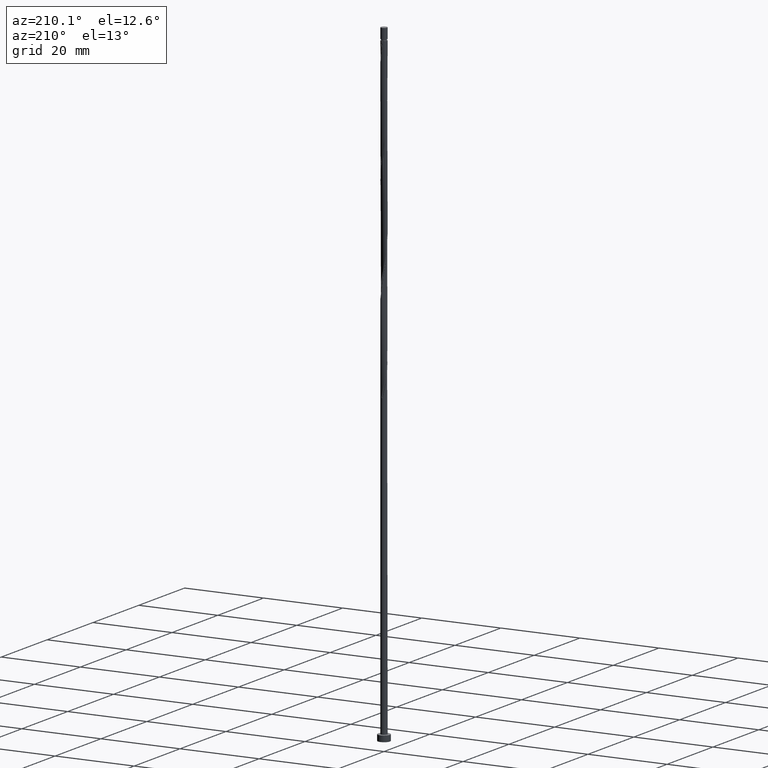
[diagram: clean part render]
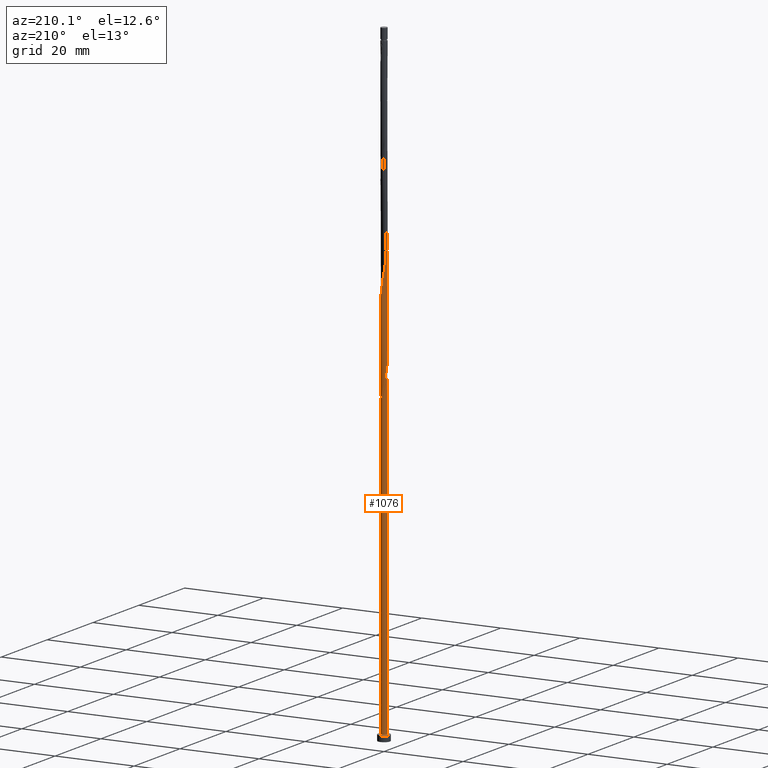
[diagram: same view with one face highlighted and labeled with its STEP entity id]
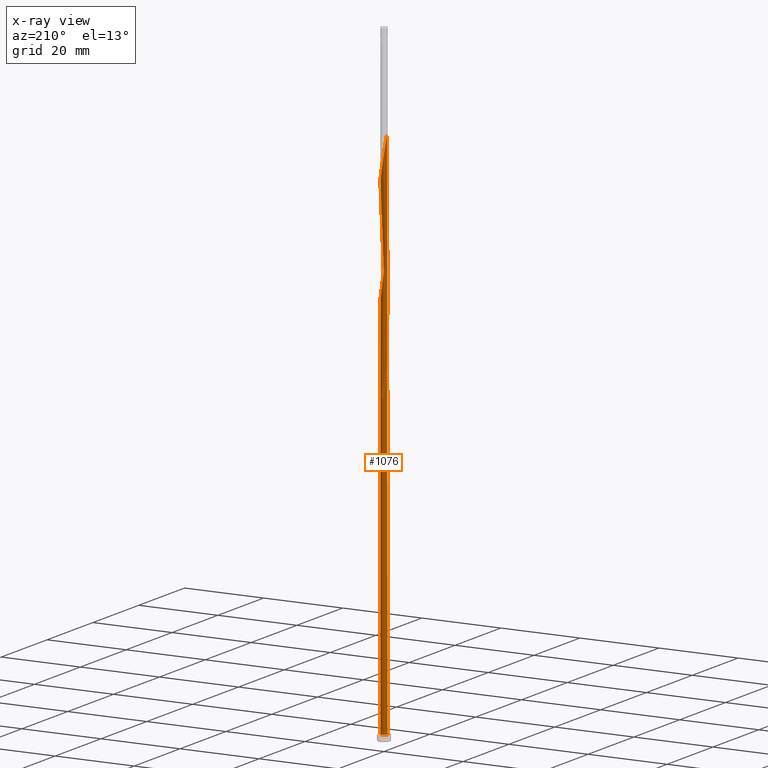
[diagram: x-ray of the same camera — body ghosted, the highlighted face saturated]
A machine part, auxiliary view. The second image highlights one B-rep face of the part: STEP entity #1076.
The next image is the same camera in x-ray: the body ghosted, the highlighted face saturated — about 0% of this face is hidden behind the body in this view.
In plain terms, the highlighted cylindrical surface (bore or boss wall) has radius 0.8 mm, axis along (-0, -0, -1).
Its self-contained STEP definition (entity closure, byte-faithful):
#7 = DIRECTION ( 'NONE',  ( 1.000000000000000000, 0.000000000000000000, 0.000000000000000000 ) ) ;
#13 = CARTESIAN_POINT ( 'NONE',  ( 0.7920620496058212723, 0.1608350589319826329, 97.08868662782420245 ) ) ;
#30 = EDGE_CURVE ( 'NONE', #414, #1247, #276, .T. ) ;
#34 = CARTESIAN_POINT ( 'NONE',  ( 0.3736276773218415448, -0.7073912345647829225, 91.63414117327870656 ) ) ;
#40 = CARTESIAN_POINT ( 'NONE',  ( -0.3736276773218417668, 0.7073912345647827005, 131.6341411732787208 ) ) ;
#42 = VERTEX_POINT ( 'NONE', #1539 ) ;
#44 = FACE_OUTER_BOUND ( 'NONE', #409, .T. ) ;
#58 = CARTESIAN_POINT ( 'NONE',  ( 0.1827337510560421152, 0.7872982807249216952, 128.6038381429756896 ) ) ;
#68 = CARTESIAN_POINT ( 'NONE',  ( -0.1591979899370598028, 0.7840000000000009184, 130.4220199611574742 ) ) ;
#78 = CARTESIAN_POINT ( 'NONE',  ( -0.8052904436461325588, 0.06882955745640037537, 109.2098987490362987 ) ) ;
#82 = CARTESIAN_POINT ( 'NONE',  ( -0.7146654988808337494, 0.3774697753686226398, 82.54323208236965570 ) ) ;
#100 = CARTESIAN_POINT ( 'NONE',  ( -0.7533637742433275664, -0.2691524171503025253, 84.36141390055145450 ) ) ;
#117 = CARTESIAN_POINT ( 'NONE',  ( -0.6470182492983654887, -0.4704969554363557238, 85.57353511267264423 ) ) ;
#163 = CARTESIAN_POINT ( 'NONE',  ( -0.7532789951889099500, 0.2929180124448056977, 134.6644442035816951 ) ) ;
#164 = AXIS2_PLACEMENT_3D ( 'NONE', #1075, #1525, #1174 ) ;
#165 = VERTEX_POINT ( 'NONE', #974 ) ;
#168 = CARTESIAN_POINT ( 'NONE',  ( -0.1591979899370598028, 0.7840000000000009184, 77.08868662782418824 ) ) ;
#174 = CARTESIAN_POINT ( 'NONE',  ( -0.7986762466259769155, -0.04600275073779128143, 109.8159593550969362 ) ) ;
#175 =( BOUNDED_CURVE ( )  B_SPLINE_CURVE ( 2, ( #168, #653, #661, #1128, #1018, #537, #1472, #177, #1134, #545, #594 ),
 .UNSPECIFIED., .F., .T. ) 
 B_SPLINE_CURVE_WITH_KNOTS ( ( 3, 2, 2, 2, 2, 3 ),
 ( 0.000000000000000000, 0.01136363636363635528, 0.02272727272727271056, 0.03409090909090906063, 0.04545454545454542111, 0.05452521624175113435 ),
 .UNSPECIFIED. ) 
 CURVE ( )  GEOMETRIC_REPRESENTATION_ITEM ( )  RATIONAL_B_SPLINE_CURVE ( ( 0.9090909090909515822, 0.8998376744372534874, 0.9090909090909515822, 0.8998376744372534874, 0.9090909090909515822, 0.8998376744372534874, 0.9090909090909515822, 0.8998376744372534874, 0.9090909090909515822, 0.9017048011080311953, 0.9061101570135916550 ) ) 
 REPRESENTATION_ITEM ( '' )  );
#177 = CARTESIAN_POINT ( 'NONE',  ( -0.7532789951889099500, 0.2929180124448056977, 81.33111087024843755 ) ) ;
#182 = CARTESIAN_POINT ( 'NONE',  ( -0.6402413624641631884, 0.4932759921154294402, 106.7856563247939050 ) ) ;
#199 = CARTESIAN_POINT ( 'NONE',  ( 0.4882551537609419179, 0.6337246285460907957, 126.7856563247938766 ) ) ;
#258 = CARTESIAN_POINT ( 'NONE',  ( 0.4753351822145643890, -0.6536716845301440149, 92.24020177933931564 ) ) ;
#263 = DIRECTION ( 'NONE',  ( -0.000000000000000000, -0.000000000000000000, -1.000000000000000000 ) ) ;
#276 =( BOUNDED_CURVE ( )  B_SPLINE_CURVE ( 2, ( #1034, #1377, #321, #906, #100, #585, #117, #1410, #934, #606, #592, #519, #1326, #873, #992, #746, #34, #258, #497, #1426, #620, #1105, #504, #512, #847, #13, #985, #854, #645, #1315, #638, #1117, #1112, #1452, #739, #1447, #979, #1138, #534, #1246, #401, #182, #1146, #1236, #317, #78, #174, #553, #418, #659, #1496, #792, #1024, #527, #667, #651, #675, #1348, #1253, #564, #878, #434, #1132, #1488, #1015, #1469, #1374, #897, #1358, #774, #1228, #1262, #300, #426, #199, #997, #1365, #58, #309, #1338, #68, #683, #40, #1461, #283, #783, #760, #163, #1477, #1126, #1004 ),
 .UNSPECIFIED., .F., .T. ) 
 B_SPLINE_CURVE_WITH_KNOTS ( ( 3, 2, 2, 2, 2, 2, 2, 2, 2, 2, 2, 2, 2, 2, 2, 2, 2, 2, 2, 2, 2, 2, 2, 2, 2, 2, 2, 2, 2, 2, 2, 2, 2, 2, 2, 2, 2, 2, 2, 2, 2, 2, 2, 2, 2, 3 ),
 ( 0.05452521624175113435, 0.05681818181818176772, 0.06818181818181823228, 0.07954545454545458583, 0.09090909090909093937, 0.1022727272727272929, 0.1136363636363636465, 0.1250000000000000000, 0.1363636363636363535, 0.1477272727272727071, 0.1590909090909090606, 0.1704545454545454142, 0.1818181818181817677, 0.1931818181818182323, 0.2045454545454545858, 0.2159090909090909394, 0.2272727272727272929, 0.2386363636363636465, 0.2500000000000000000, 0.2613636363636363535, 0.2727272727272727071, 0.2840909090909090606, 0.2954545454545454142, 0.3068181818181817677, 0.3181818181818182323, 0.3295454545454545858, 0.3409090909090909394, 0.3522727272727272929, 0.3636363636363636465, 0.3750000000000000000, 0.3863636363636363535, 0.3977272727272727071, 0.4090909090909090606, 0.4204545454545454142, 0.4318181818181817677, 0.4431818181818182323, 0.4545454545454545858, 0.4659090909090909394, 0.4772727272727272929, 0.4886363636363636465, 0.5000000000000000000, 0.5113636363636363535, 0.5227272727272727071, 0.5340909090909091717, 0.5454545454545454142, 0.5545252162417513286 ),
 .UNSPECIFIED. ) 
 CURVE ( )  GEOMETRIC_REPRESENTATION_ITEM ( )  RATIONAL_B_SPLINE_CURVE ( ( 0.9061101570135916550, 0.9072237824201738743, 0.9090909090909515822, 0.8998376744372534874, 0.9090909090909515822, 0.8998376744372534874, 0.9090909090909515822, 0.8998376744372534874, 0.9090909090909515822, 0.8998376744372534874, 0.9090909090909515822, 0.8998376744372534874, 0.9090909090909515822, 0.8998376744372534874, 0.9090909090909515822, 0.8998376744372534874, 0.9090909090909515822, 0.8998376744372534874, 0.9090909090909515822, 0.8998376744372534874, 0.9090909090909515822, 0.8998376744372534874, 0.9090909090909515822, 0.8998376744372534874, 0.9090909090909515822, 0.8998376744372534874, 0.9090909090909515822, 0.8998376744372534874, 0.9090909090909515822, 0.8998376744372534874, 0.9090909090909515822, 0.8998376744372534874, 0.9090909090909515822, 0.8998376744372534874, 0.9090909090909515822, 0.8998376744372534874, 0.9090909090909515822, 0.8998376744372534874, 0.9090909090909515822, 0.8998376744372534874, 0.9090909090909515822, 0.8998376744372534874, 0.9090909090909515822, 0.8998376744372534874, 0.9090909090909515822, 0.8998376744372534874, 0.9090909090909515822, 0.8998376744372534874, 0.9090909090909515822, 0.8998376744372534874, 0.9090909090909515822, 0.8998376744372534874, 0.9090909090909515822, 0.8998376744372534874, 0.9090909090909515822, 0.8998376744372534874, 0.9090909090909515822, 0.8998376744372534874, 0.9090909090909515822, 0.8998376744372534874, 0.9090909090909515822, 0.8998376744372534874, 0.9090909090909515822, 0.8998376744372534874, 0.9090909090909515822, 0.8998376744372534874, 0.9090909090909515822, 0.8998376744372534874, 0.9090909090909515822, 0.8998376744372534874, 0.9090909090909515822, 0.8998376744372534874, 0.9090909090909515822, 0.8998376744372534874, 0.9090909090909515822, 0.8998376744372534874, 0.9090909090909515822, 0.8998376744372534874, 0.9090909090909515822, 0.8998376744372534874, 0.9090909090909515822, 0.8998376744372534874, 0.9090909090909515822, 0.8998376744372534874, 0.9090909090909515822, 0.8998376744372534874, 0.9090909090909515822, 0.8998376744372534874, 0.9090909090909515822, 0.9017048011080310843, 0.9061101570135916550 ) ) 
 REPRESENTATION_ITEM ( '' )  );
#283 = CARTESIAN_POINT ( 'NONE',  ( -0.5577882723393635667, 0.5734738383227868663, 132.8462623853999673 ) ) ;
#295 = DIRECTION ( 'NONE',  ( -0.000000000000000000, -0.000000000000000000, -1.000000000000000000 ) ) ;
#300 = CARTESIAN_POINT ( 'NONE',  ( 0.6470182492983657108, 0.4704969554363555018, 125.5735351126726584 ) ) ;
#309 = CARTESIAN_POINT ( 'NONE',  ( 0.06812897180552067444, 0.7970937480627510174, 129.2098987490363129 ) ) ;
#312 = CARTESIAN_POINT ( 'NONE',  ( 0.1591979899370601914, 0.7840000000000009184, 77.08868662782418824 ) ) ;
#314 = ORIENTED_EDGE ( 'NONE', *, *, #30, .F. ) ;
#317 = CARTESIAN_POINT ( 'NONE',  ( -0.7792847194175213099, 0.1808737849506030226, 108.6038381429756754 ) ) ;
#321 = CARTESIAN_POINT ( 'NONE',  ( -0.7986762466259769155, -0.04600275073779128143, 83.14929268843022214 ) ) ;
#351 = CARTESIAN_POINT ( 'NONE',  ( -0.7986762466259770266, 0.04600275073779136470, 84.36141390055145450 ) ) ;
#377 = AXIS2_PLACEMENT_3D ( 'NONE', #1000, #295, #1463 ) ;
#385 = LINE ( 'NONE', #1446, #1120 ) ;
#397 = ORIENTED_EDGE ( 'NONE', *, *, #795, .F. ) ;
#401 = CARTESIAN_POINT ( 'NONE',  ( -0.5577882723393635667, 0.5734738383227868663, 106.1795957187332533 ) ) ;
#409 = EDGE_LOOP ( 'NONE', ( #420, #314, #1430, #554, #440, #397, #1010, #513, #1049 ) ) ;
#414 = VERTEX_POINT ( 'NONE', #759 ) ;
#418 = CARTESIAN_POINT ( 'NONE',  ( -0.7533637742433275664, -0.2691524171503025253, 111.0280805672181401 ) ) ;
#420 = ORIENTED_EDGE ( 'NONE', *, *, #949, .F. ) ;
#426 = CARTESIAN_POINT ( 'NONE',  ( 0.5793709997158974501, 0.5635241355040887523, 126.1795957187332675 ) ) ;
#434 = CARTESIAN_POINT ( 'NONE',  ( 0.4753351822145643890, -0.6536716845301440149, 118.9068684460060012 ) ) ;
#438 = CARTESIAN_POINT ( 'NONE',  ( -0.8000000000000010436, -1.028281423365341519E-15, 84.60480777379174810 ) ) ;
#440 = ORIENTED_EDGE ( 'NONE', *, *, #508, .T. ) ;
#450 = CARTESIAN_POINT ( 'NONE',  ( -0.4882551537609421399, 0.6337246285460906847, 80.72505026418781426 ) ) ;
#456 = EDGE_CURVE ( 'NONE', #42, #966, #500, .T. ) ;
#460 = CARTESIAN_POINT ( 'NONE',  ( -0.2899365294310144447, 0.7456117011565069896, 79.51292905206662454 ) ) ;
#476 = CARTESIAN_POINT ( 'NONE',  ( -0.3971393078059871073, 0.7039251215880925061, 80.11898965812723361 ) ) ;
#497 = CARTESIAN_POINT ( 'NONE',  ( 0.5577882723393635667, -0.5734738383227868663, 92.84626238539995313 ) ) ;
#500 = CIRCLE ( 'NONE', #791, 0.8000000000000000444 ) ;
#504 = CARTESIAN_POINT ( 'NONE',  ( 0.7792847194175213099, -0.1808737849506029394, 95.27050480964237522 ) ) ;
#508 = EDGE_CURVE ( 'NONE', #1230, #165, #1194, .T. ) ;
#512 = CARTESIAN_POINT ( 'NONE',  ( 0.8052904436461325588, -0.06882955745640031986, 95.87656541570295587 ) ) ;
#513 = ORIENTED_EDGE ( 'NONE', *, *, #456, .T. ) ;
#519 = CARTESIAN_POINT ( 'NONE',  ( -0.1827337510560419487, -0.7872982807249219173, 88.60383814297568961 ) ) ;
#527 = CARTESIAN_POINT ( 'NONE',  ( -0.3971393078059871629, -0.7039251215880923951, 114.0583835975211571 ) ) ;
#529 = CYLINDRICAL_SURFACE ( 'NONE', #377, 0.8000000000000000444 ) ;
#534 = CARTESIAN_POINT ( 'NONE',  ( -0.3736276773218417668, 0.7073912345647827005, 104.9674745066120636 ) ) ;
#537 = CARTESIAN_POINT ( 'NONE',  ( -0.6402413624641631884, 0.4932759921154294402, 80.11898965812723361 ) ) ;
#545 = CARTESIAN_POINT ( 'NONE',  ( -0.8000000000000008216, 0.09162314190809955905, 82.41993886221865750 ) ) ;
#553 = CARTESIAN_POINT ( 'NONE',  ( -0.7920620496058212723, -0.1608350589319827439, 110.4220199611575168 ) ) ;
#554 = ORIENTED_EDGE ( 'NONE', *, *, #1224, .T. ) ;
#564 = CARTESIAN_POINT ( 'NONE',  ( 0.2719201724291190891, -0.7611107845994218302, 117.6947472338847973 ) ) ;
#567 = CARTESIAN_POINT ( 'NONE',  ( 0.1591979899370601914, 0.7840000000000009184, 77.08868662782418824 ) ) ;
#577 = CARTESIAN_POINT ( 'NONE',  ( -0.7920620496058214943, 0.1608350589319828550, 83.75535329449085964 ) ) ;
#585 = CARTESIAN_POINT ( 'NONE',  ( -0.7146654988808335274, -0.3774697753686225288, 84.96747450661206358 ) ) ;
#592 = CARTESIAN_POINT ( 'NONE',  ( -0.2899365294310145558, -0.7456117011565067676, 87.99777753691509474 ) ) ;
#594 = CARTESIAN_POINT ( 'NONE',  ( -0.8000000000000010436, 1.103065526882822455E-15, 82.90589881518994275 ) ) ;
#602 = CARTESIAN_POINT ( 'NONE',  ( -0.06812897180552061893, 0.7970937480627513505, 78.30080783994542060 ) ) ;
#606 = CARTESIAN_POINT ( 'NONE',  ( -0.3971393078059871629, -0.7039251215880923951, 87.39171693085449988 ) ) ;
#620 = CARTESIAN_POINT ( 'NONE',  ( 0.6967601788265364027, -0.3930970022801176800, 94.05838359752117128 ) ) ;
#638 = CARTESIAN_POINT ( 'NONE',  ( 0.4882551537609419179, 0.6337246285460907957, 100.1189896581272194 ) ) ;
#645 = CARTESIAN_POINT ( 'NONE',  ( 0.6470182492983657108, 0.4704969554363555018, 98.90686844600598704 ) ) ;
#648 = CIRCLE ( 'NONE', #164, 0.8000000000000000444 ) ;
#651 = CARTESIAN_POINT ( 'NONE',  ( -0.1827337510560419487, -0.7872982807249219173, 115.2705048096423752 ) ) ;
#653 = CARTESIAN_POINT ( 'NONE',  ( -0.2719201724291192557, 0.7611107845994216081, 77.69474723388478310 ) ) ;
#659 = CARTESIAN_POINT ( 'NONE',  ( -0.7146654988808335274, -0.3774697753686225288, 111.6341411732787350 ) ) ;
#661 = CARTESIAN_POINT ( 'NONE',  ( -0.3736276773218417668, 0.7073912345647827005, 78.30080783994537796 ) ) ;
#667 = CARTESIAN_POINT ( 'NONE',  ( -0.2899365294310145558, -0.7456117011565067676, 114.6644442035817661 ) ) ;
#675 = CARTESIAN_POINT ( 'NONE',  ( -0.06812897180552060505, -0.7970937480627510174, 115.8765654157029417 ) ) ;
#683 = CARTESIAN_POINT ( 'NONE',  ( -0.2719201724291192557, 0.7611107845994216081, 131.0280805672181543 ) ) ;
#687 = CARTESIAN_POINT ( 'NONE',  ( -0.1827337510560420875, 0.7872982807249219173, 78.90686844600598704 ) ) ;
#739 = CARTESIAN_POINT ( 'NONE',  ( 0.06812897180552067444, 0.7970937480627510174, 102.5432320823696699 ) ) ;
#746 = CARTESIAN_POINT ( 'NONE',  ( 0.2719201724291190891, -0.7611107845994218302, 91.02808056721812591 ) ) ;
#759 = CARTESIAN_POINT ( 'NONE',  ( -0.8000000000000010436, 1.103065526882822455E-15, 82.90589881518994275 ) ) ;
#760 = CARTESIAN_POINT ( 'NONE',  ( -0.6967601788265365137, 0.3930970022801175134, 134.0583835975211571 ) ) ;
#774 = CARTESIAN_POINT ( 'NONE',  ( 0.7920620496058212723, 0.1608350589319826329, 123.7553532944908739 ) ) ;
#783 = CARTESIAN_POINT ( 'NONE',  ( -0.6402413624641631884, 0.4932759921154294402, 133.4523229914605338 ) ) ;
#791 = AXIS2_PLACEMENT_3D ( 'NONE', #1202, #857, #1066 ) ;
#792 = CARTESIAN_POINT ( 'NONE',  ( -0.5793709997158972280, -0.5635241355040891964, 112.8462623853999247 ) ) ;
#795 = EDGE_CURVE ( 'NONE', #414, #165, #385, .T. ) ;
#815 = CARTESIAN_POINT ( 'NONE',  ( -0.5793709997158973390, 0.5635241355040891964, 81.33111087024842334 ) ) ;
#828 = CARTESIAN_POINT ( 'NONE',  ( -0.8000000000000011546, -1.121761552762192344E-17, 136.2392321485232856 ) ) ;
#847 = CARTESIAN_POINT ( 'NONE',  ( 0.7986762466259769155, 0.04600275073779119817, 96.48262602176357916 ) ) ;
#854 = CARTESIAN_POINT ( 'NONE',  ( 0.7146654988808338604, 0.3774697753686223622, 98.30080783994539217 ) ) ;
#857 = DIRECTION ( 'NONE',  ( 0.000000000000000000, -0.000000000000000000, -1.000000000000000000 ) ) ;
#873 = CARTESIAN_POINT ( 'NONE',  ( 0.04647580744500075939, -0.8068892154005803397, 89.81595935509690776 ) ) ;
#878 = CARTESIAN_POINT ( 'NONE',  ( 0.3736276773218415448, -0.7073912345647829225, 118.3008078399453922 ) ) ;
#897 = CARTESIAN_POINT ( 'NONE',  ( 0.8052904436461325588, -0.06882955745640031986, 122.5432320823696415 ) ) ;
#906 = CARTESIAN_POINT ( 'NONE',  ( -0.7920620496058212723, -0.1608350589319827439, 83.75535329449085964 ) ) ;
#934 = CARTESIAN_POINT ( 'NONE',  ( -0.4882551537609420844, -0.6337246285460906847, 86.78565632479389080 ) ) ;
#949 = EDGE_CURVE ( 'NONE', #1247, #1238, #1141, .T. ) ;
#955 = CARTESIAN_POINT ( 'NONE',  ( 0.8000000000000000444, 0.000000000000000000, 1.500000000000000000 ) ) ;
#966 = VERTEX_POINT ( 'NONE', #312 ) ;
#974 = CARTESIAN_POINT ( 'NONE',  ( -0.8000000000000000444, 0.000000000000000000, 1.500000000000000000 ) ) ;
#979 = CARTESIAN_POINT ( 'NONE',  ( -0.1591979899370598028, 0.7840000000000009184, 103.7553532944908596 ) ) ;
#985 = CARTESIAN_POINT ( 'NONE',  ( 0.7533637742433275664, 0.2691524171503024143, 97.69474723388479731 ) ) ;
#987 =( BOUNDED_CURVE ( )  B_SPLINE_CURVE ( 2, ( #438, #1517, #351, #577, #1036, #82, #1535, #815, #450, #476, #460, #687, #602, #1158, #567 ),
 .UNSPECIFIED., .F., .T. ) 
 B_SPLINE_CURVE_WITH_KNOTS ( ( 3, 2, 2, 2, 2, 2, 2, 3 ),
 ( 0.9295252162417512176, 0.9318181818181817677, 0.9431818181818182323, 0.9545454545454545858, 0.9659090909090909394, 0.9772727272727272929, 0.9886363636363636465, 1.000000000000000000 ),
 .UNSPECIFIED. ) 
 CURVE ( )  GEOMETRIC_REPRESENTATION_ITEM ( )  RATIONAL_B_SPLINE_CURVE ( ( 0.9061101570135929872, 0.9072237824201750955, 0.9090909090909526924, 0.8998376744372547087, 0.9090909090909526924, 0.8998376744372547087, 0.9090909090909526924, 0.8998376744372547087, 0.9090909090909526924, 0.8998376744372547087, 0.9090909090909526924, 0.8998376744372547087, 0.9090909090909526924, 0.8998376744372547087, 0.9090909090909526924 ) ) 
 REPRESENTATION_ITEM ( '' )  );
#992 = CARTESIAN_POINT ( 'NONE',  ( 0.1591979899370598583, -0.7840000000000009184, 90.42201996115748841 ) ) ;
#997 = CARTESIAN_POINT ( 'NONE',  ( 0.3971393078059867743, 0.7039251215880925061, 127.3917169308544715 ) ) ;
#1000 = CARTESIAN_POINT ( 'NONE',  ( 0.000000000000000000, 0.000000000000000000, 160.0000000000000000 ) ) ;
#1004 = CARTESIAN_POINT ( 'NONE',  ( -0.8000000000000011546, -1.121761552762192498E-17, 136.2392321485232856 ) ) ;
#1010 = ORIENTED_EDGE ( 'NONE', *, *, #1170, .F. ) ;
#1015 = CARTESIAN_POINT ( 'NONE',  ( 0.6967601788265364027, -0.3930970022801176800, 120.7250502641878001 ) ) ;
#1018 = CARTESIAN_POINT ( 'NONE',  ( -0.5577882723393635667, 0.5734738383227868663, 79.51292905206662454 ) ) ;
#1024 = CARTESIAN_POINT ( 'NONE',  ( -0.4882551537609420844, -0.6337246285460906847, 113.4523229914605338 ) ) ;
#1034 = CARTESIAN_POINT ( 'NONE',  ( -0.8000000000000010436, 1.103065526882822455E-15, 82.90589881518994275 ) ) ;
#1036 = CARTESIAN_POINT ( 'NONE',  ( -0.7533637742433275664, 0.2691524171503026919, 83.14929268843023635 ) ) ;
#1049 = ORIENTED_EDGE ( 'NONE', *, *, #1196, .F. ) ;
#1066 = DIRECTION ( 'NONE',  ( -1.000000000000000000, 0.000000000000000000, 0.000000000000000000 ) ) ;
#1075 = CARTESIAN_POINT ( 'NONE',  ( 0.000000000000000000, 0.000000000000000000, 1.500000000000000000 ) ) ;
#1076 = ADVANCED_FACE ( 'NONE', ( #44 ), #529, .T. ) ;
#1087 = CARTESIAN_POINT ( 'NONE',  ( 0.000000000000000000, 0.000000000000000000, 1.500000000000000000 ) ) ;
#1105 = CARTESIAN_POINT ( 'NONE',  ( 0.7532789951889101721, -0.2929180124448055311, 94.66444420358178036 ) ) ;
#1112 = CARTESIAN_POINT ( 'NONE',  ( 0.2899365294310144447, 0.7456117011565067676, 101.3311108702484518 ) ) ;
#1117 = CARTESIAN_POINT ( 'NONE',  ( 0.3971393078059867743, 0.7039251215880925061, 100.7250502641878285 ) ) ;
#1120 = VECTOR ( 'NONE', #263, 1000.000000000000000 ) ;
#1126 = CARTESIAN_POINT ( 'NONE',  ( -0.8000000000000011546, 0.09162314190809853209, 135.7532721955520003 ) ) ;
#1128 = CARTESIAN_POINT ( 'NONE',  ( -0.4753351822145642780, 0.6536716845301441259, 78.90686844600598704 ) ) ;
#1132 = CARTESIAN_POINT ( 'NONE',  ( 0.5577882723393635667, -0.5734738383227868663, 119.5129290520666103 ) ) ;
#1134 = CARTESIAN_POINT ( 'NONE',  ( -0.7792847194175213099, 0.1808737849506030226, 81.93717147630903241 ) ) ;
#1138 = CARTESIAN_POINT ( 'NONE',  ( -0.2719201724291192557, 0.7611107845994216081, 104.3614139005514403 ) ) ;
#1141 = LINE ( 'NONE', #1231, #1510 ) ;
#1143 = AXIS2_PLACEMENT_3D ( 'NONE', #1087, #1311, #7 ) ;
#1146 = CARTESIAN_POINT ( 'NONE',  ( -0.6967601788265365137, 0.3930970022801175134, 107.3917169308544715 ) ) ;
#1158 = CARTESIAN_POINT ( 'NONE',  ( 0.04647580744500075245, 0.8068892154005805617, 77.69474723388478310 ) ) ;
#1170 = EDGE_CURVE ( 'NONE', #42, #414, #175, .T. ) ;
#1174 = DIRECTION ( 'NONE',  ( 1.000000000000000000, 0.000000000000000000, 0.000000000000000000 ) ) ;
#1194 = CIRCLE ( 'NONE', #1143, 0.8000000000000000444 ) ;
#1196 = EDGE_CURVE ( 'NONE', #1238, #966, #987, .T. ) ;
#1202 = CARTESIAN_POINT ( 'NONE',  ( 0.000000000000000000, 0.000000000000000000, 77.08868662782420245 ) ) ;
#1224 = EDGE_CURVE ( 'NONE', #165, #1230, #648, .T. ) ;
#1228 = CARTESIAN_POINT ( 'NONE',  ( 0.7533637742433275664, 0.2691524171503024143, 124.3614139005514545 ) ) ;
#1230 = VERTEX_POINT ( 'NONE', #955 ) ;
#1231 = CARTESIAN_POINT ( 'NONE',  ( -0.8000000000000000444, 0.000000000000000000, 160.0000000000000000 ) ) ;
#1236 = CARTESIAN_POINT ( 'NONE',  ( -0.7532789951889099500, 0.2929180124448056977, 107.9977775369150805 ) ) ;
#1238 = VERTEX_POINT ( 'NONE', #1499 ) ;
#1246 = CARTESIAN_POINT ( 'NONE',  ( -0.4753351822145642780, 0.6536716845301441259, 105.5735351126726727 ) ) ;
#1247 = VERTEX_POINT ( 'NONE', #828 ) ;
#1253 = CARTESIAN_POINT ( 'NONE',  ( 0.1591979899370598583, -0.7840000000000009184, 117.0886866278241740 ) ) ;
#1262 = CARTESIAN_POINT ( 'NONE',  ( 0.7146654988808338604, 0.3774697753686223622, 124.9674745066120636 ) ) ;
#1311 = DIRECTION ( 'NONE',  ( 0.000000000000000000, 0.000000000000000000, 1.000000000000000000 ) ) ;
#1315 = CARTESIAN_POINT ( 'NONE',  ( 0.5793709997158974501, 0.5635241355040887523, 99.51292905206661032 ) ) ;
#1326 = CARTESIAN_POINT ( 'NONE',  ( -0.06812897180552060505, -0.7970937480627510174, 89.20989874903629868 ) ) ;
#1338 = CARTESIAN_POINT ( 'NONE',  ( -0.04647580744500064143, 0.8068892154005803397, 129.8159593550969078 ) ) ;
#1348 = CARTESIAN_POINT ( 'NONE',  ( 0.04647580744500075939, -0.8068892154005803397, 116.4826260217635649 ) ) ;
#1358 = CARTESIAN_POINT ( 'NONE',  ( 0.7986762466259769155, 0.04600275073779119817, 123.1492926884302364 ) ) ;
#1365 = CARTESIAN_POINT ( 'NONE',  ( 0.2899365294310144447, 0.7456117011565067676, 127.9977775369151090 ) ) ;
#1368 = DIRECTION ( 'NONE',  ( -0.000000000000000000, -0.000000000000000000, -1.000000000000000000 ) ) ;
#1374 = CARTESIAN_POINT ( 'NONE',  ( 0.7792847194175213099, -0.1808737849506029394, 121.9371714763090182 ) ) ;
#1377 = CARTESIAN_POINT ( 'NONE',  ( -0.8000000000000011546, -0.02302042121905685870, 83.02799681990816794 ) ) ;
#1410 = CARTESIAN_POINT ( 'NONE',  ( -0.5793709997158972280, -0.5635241355040891964, 86.17959571873329594 ) ) ;
#1426 = CARTESIAN_POINT ( 'NONE',  ( 0.6402413624641630774, -0.4932759921154296623, 93.45232299146053379 ) ) ;
#1430 = ORIENTED_EDGE ( 'NONE', *, *, #795, .T. ) ;
#1446 = CARTESIAN_POINT ( 'NONE',  ( -0.8000000000000000444, 0.000000000000000000, 160.0000000000000000 ) ) ;
#1447 = CARTESIAN_POINT ( 'NONE',  ( -0.04647580744500064143, 0.8068892154005803397, 103.1492926884302790 ) ) ;
#1452 = CARTESIAN_POINT ( 'NONE',  ( 0.1827337510560421152, 0.7872982807249216952, 101.9371714763090608 ) ) ;
#1461 = CARTESIAN_POINT ( 'NONE',  ( -0.4753351822145642780, 0.6536716845301441259, 132.2402017793393441 ) ) ;
#1463 = DIRECTION ( 'NONE',  ( -1.000000000000000000, 0.000000000000000000, 0.000000000000000000 ) ) ;
#1469 = CARTESIAN_POINT ( 'NONE',  ( 0.7532789951889101721, -0.2929180124448055311, 121.3311108702484518 ) ) ;
#1472 = CARTESIAN_POINT ( 'NONE',  ( -0.6967601788265365137, 0.3930970022801175134, 80.72505026418781426 ) ) ;
#1477 = CARTESIAN_POINT ( 'NONE',  ( -0.7792847194175213099, 0.1808737849506030226, 135.2705048096424036 ) ) ;
#1488 = CARTESIAN_POINT ( 'NONE',  ( 0.6402413624641630774, -0.4932759921154296623, 120.1189896581272336 ) ) ;
#1496 = CARTESIAN_POINT ( 'NONE',  ( -0.6470182492983654887, -0.4704969554363557238, 112.2402017793393441 ) ) ;
#1499 = CARTESIAN_POINT ( 'NONE',  ( -0.8000000000000011546, -1.028281423365341717E-15, 84.60480777379174810 ) ) ;
#1510 = VECTOR ( 'NONE', #1368, 1000.000000000000000 ) ;
#1517 = CARTESIAN_POINT ( 'NONE',  ( -0.8000000000000012657, 0.02302042121905777464, 84.48270976907353713 ) ) ;
#1525 = DIRECTION ( 'NONE',  ( 0.000000000000000000, 0.000000000000000000, 1.000000000000000000 ) ) ;
#1535 = CARTESIAN_POINT ( 'NONE',  ( -0.6470182492983653777, 0.4704969554363558903, 81.93717147630901820 ) ) ;
#1539 = CARTESIAN_POINT ( 'NONE',  ( -0.1591979899370598028, 0.7840000000000009184, 77.08868662782418824 ) ) ;